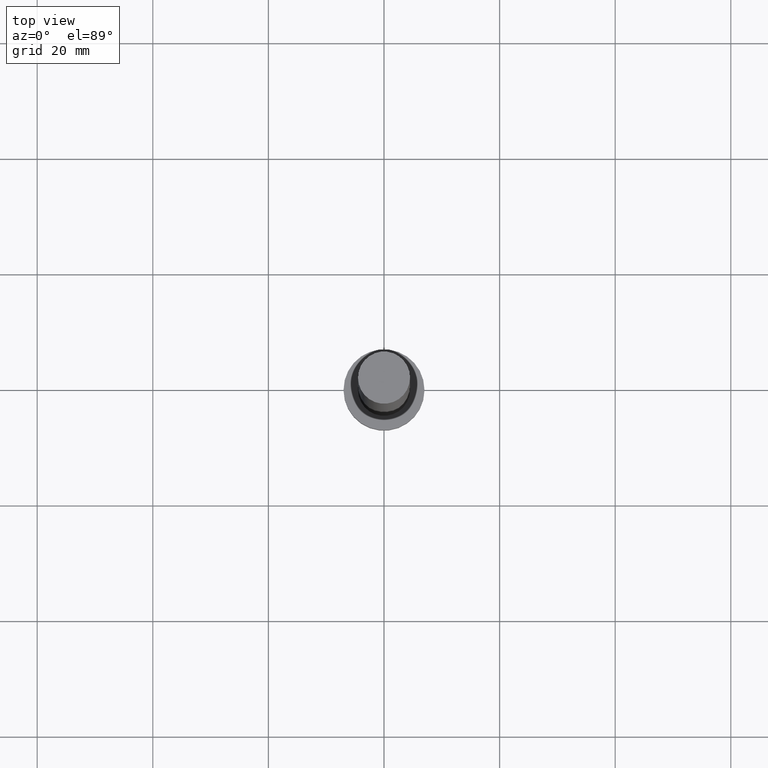
[diagram: clean part render]
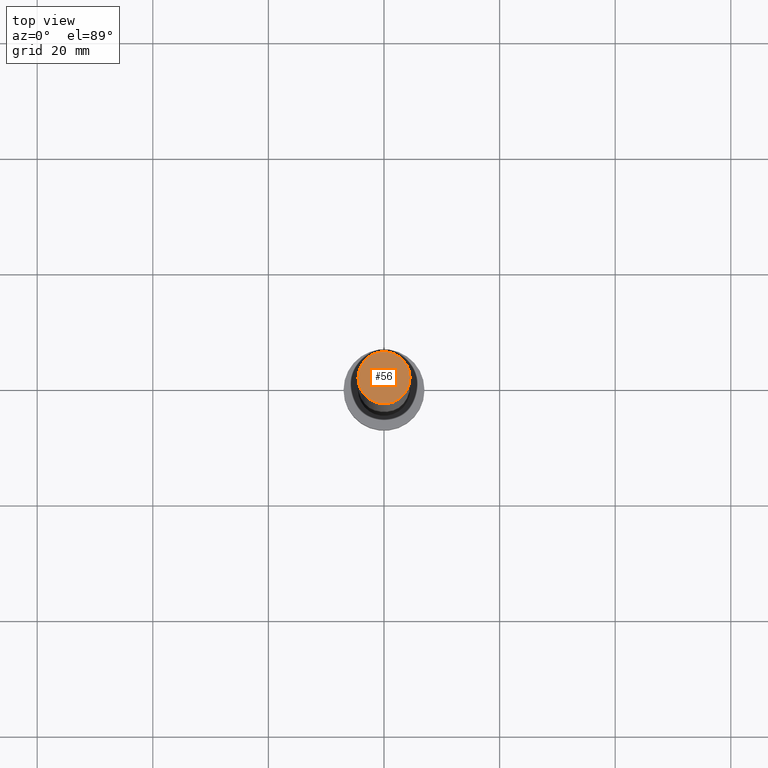
[diagram: same view with one face highlighted and labeled with its STEP entity id]
A machine part, top view. The second image highlights one B-rep face of the part: STEP entity #56.
In plain terms, the highlighted planar face has unit normal (0, 0, 1).
Its self-contained STEP definition (entity closure, byte-faithful):
#25 = CARTESIAN_POINT ( 'NONE',  ( 0.000000000000000000, 0.000000000000000000, 125.0000000000000000 ) ) ;
#31 = ORIENTED_EDGE ( 'NONE', *, *, #255, .T. ) ;
#51 = DIRECTION ( 'NONE',  ( 1.000000000000000000, 0.000000000000000000, 0.000000000000000000 ) ) ;
#56 = ADVANCED_FACE ( 'NONE', ( #85 ), #174, .T. ) ;
#58 = VERTEX_POINT ( 'NONE', #168 ) ;
#62 = DIRECTION ( 'NONE',  ( 0.000000000000000000, 0.000000000000000000, 1.000000000000000000 ) ) ;
#71 = CARTESIAN_POINT ( 'NONE',  ( 0.000000000000000000, 0.000000000000000000, 125.0000000000000000 ) ) ;
#85 = FACE_OUTER_BOUND ( 'NONE', #252, .T. ) ;
#90 = AXIS2_PLACEMENT_3D ( 'NONE', #172, #62, #221 ) ;
#103 = DIRECTION ( 'NONE',  ( 0.000000000000000000, 0.000000000000000000, 1.000000000000000000 ) ) ;
#113 = EDGE_CURVE ( 'NONE', #215, #58, #173, .T. ) ;
#118 = AXIS2_PLACEMENT_3D ( 'NONE', #25, #103, #242 ) ;
#128 = CIRCLE ( 'NONE', #169, 4.500000000000000888 ) ;
#152 = DIRECTION ( 'NONE',  ( 0.000000000000000000, 0.000000000000000000, 1.000000000000000000 ) ) ;
#168 = CARTESIAN_POINT ( 'NONE',  ( -4.500000000000000888, 0.000000000000000000, 125.0000000000000000 ) ) ;
#169 = AXIS2_PLACEMENT_3D ( 'NONE', #71, #152, #51 ) ;
#172 = CARTESIAN_POINT ( 'NONE',  ( 0.000000000000000000, 0.000000000000000000, 125.0000000000000000 ) ) ;
#173 = CIRCLE ( 'NONE', #118, 4.500000000000000888 ) ;
#174 = PLANE ( 'NONE',  #90 ) ;
#215 = VERTEX_POINT ( 'NONE', #224 ) ;
#221 = DIRECTION ( 'NONE',  ( 1.000000000000000000, 0.000000000000000000, -0.000000000000000000 ) ) ;
#224 = CARTESIAN_POINT ( 'NONE',  ( 4.500000000000000888, 5.510910596163089556E-16, 125.0000000000000000 ) ) ;
#233 = ORIENTED_EDGE ( 'NONE', *, *, #113, .T. ) ;
#242 = DIRECTION ( 'NONE',  ( 1.000000000000000000, 0.000000000000000000, 0.000000000000000000 ) ) ;
#252 = EDGE_LOOP ( 'NONE', ( #31, #233 ) ) ;
#255 = EDGE_CURVE ( 'NONE', #58, #215, #128, .T. ) ;